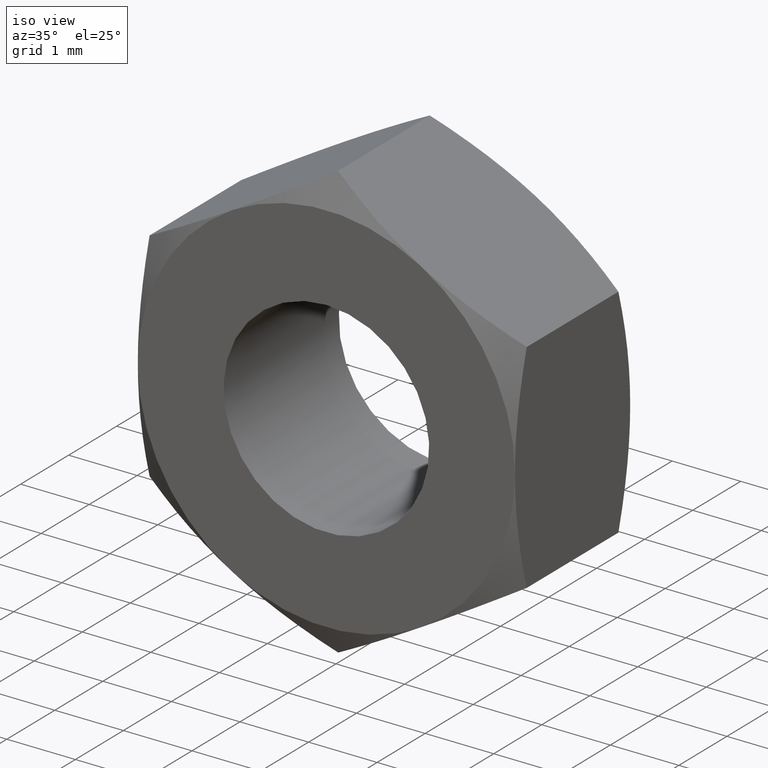
[diagram: clean part render]
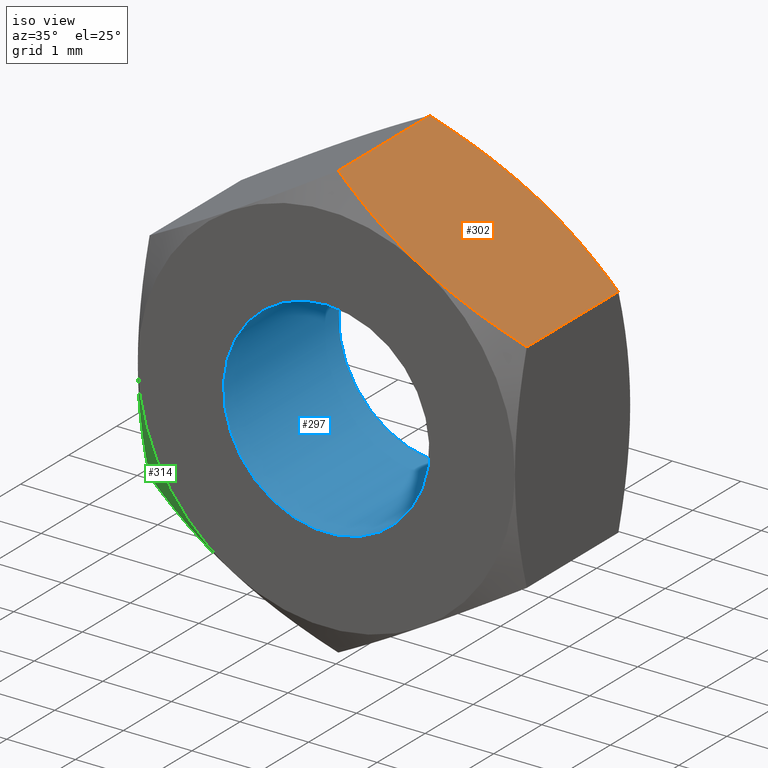
[diagram: same view with three faces highlighted in distinct colors, each labeled with its STEP entity id]
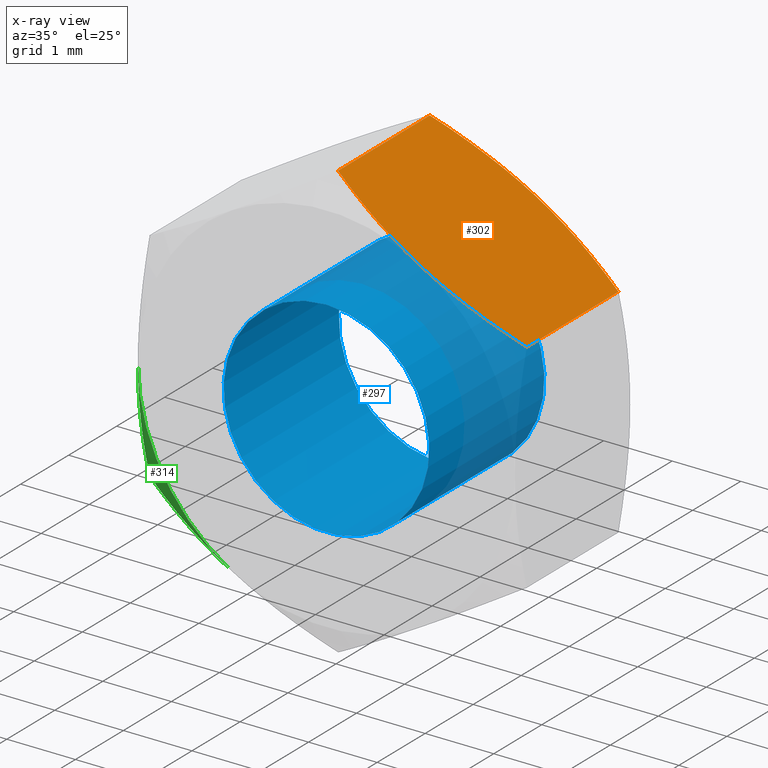
[diagram: x-ray of the same camera — body ghosted, the three highlighted faces saturated]
A machine part, iso view with three faces highlighted in distinct colors.
The next image is the same camera in x-ray (body ghosted, the three faces saturated) — at least one of them is partly hidden behind the body in this view.
Their STEP definitions:

[orange] entity #302 — the highlighted planar face has unit normal (-0.5, 0, -0.866).
#21=PLANE('',#346);
#29=LINE('',#524,#36);
#30=LINE('',#534,#37);
#36=VECTOR('',#403,1000.);
#37=VECTOR('',#406,1000.);
#47=FACE_OUTER_BOUND('',#69,.T.);
#69=EDGE_LOOP('',(#228,#229,#230,#231,#232,#233));
#84=(
BOUNDED_CURVE()
B_SPLINE_CURVE(2,(#450,#451,#452),.UNSPECIFIED.,.F.,.F.)
B_SPLINE_CURVE_WITH_KNOTS((3,3),(-1.21715266222543,-0.886731921730232),
 .UNSPECIFIED.)
CURVE()
GEOMETRIC_REPRESENTATION_ITEM()
RATIONAL_B_SPLINE_CURVE((1.92205114401652,2.07072231740623,2.07072231740623))
REPRESENTATION_ITEM('')
);
#87=(
BOUNDED_CURVE()
B_SPLINE_CURVE(2,(#464,#465,#466),.UNSPECIFIED.,.F.,.F.)
B_SPLINE_CURVE_WITH_KNOTS((3,3),(-1.21715266222543,-0.886731921730233),
 .UNSPECIFIED.)
CURVE()
GEOMETRIC_REPRESENTATION_ITEM()
RATIONAL_B_SPLINE_CURVE((1.92205114401652,2.07072231740623,2.07072231740623))
REPRESENTATION_ITEM('')
);
#98=(
BOUNDED_CURVE()
B_SPLINE_CURVE(2,(#530,#531,#532),.UNSPECIFIED.,.F.,.F.)
B_SPLINE_CURVE_WITH_KNOTS((3,3),(-0.886731921730232,-0.556311181235031),
 .UNSPECIFIED.)
CURVE()
GEOMETRIC_REPRESENTATION_ITEM()
RATIONAL_B_SPLINE_CURVE((2.07072231740623,2.07072231740623,1.92205114401652))
REPRESENTATION_ITEM('')
);
#99=(
BOUNDED_CURVE()
B_SPLINE_CURVE(2,(#535,#536,#537),.UNSPECIFIED.,.F.,.F.)
B_SPLINE_CURVE_WITH_KNOTS((3,3),(0.886731921730232,1.21715266222543),
 .UNSPECIFIED.)
CURVE()
GEOMETRIC_REPRESENTATION_ITEM()
RATIONAL_B_SPLINE_CURVE((2.07072231740623,2.07072231740623,1.92205114401652))
REPRESENTATION_ITEM('')
);
#122=VERTEX_POINT('',#446);
#124=VERTEX_POINT('',#449);
#126=VERTEX_POINT('',#458);
#127=VERTEX_POINT('',#460);
#142=VERTEX_POINT('',#529);
#143=VERTEX_POINT('',#533);
#149=EDGE_CURVE('',#124,#122,#84,.T.);
#153=EDGE_CURVE('',#127,#126,#87,.T.);
#174=EDGE_CURVE('',#127,#124,#29,.T.);
#176=EDGE_CURVE('',#122,#142,#98,.T.);
#177=EDGE_CURVE('',#143,#142,#30,.T.);
#178=EDGE_CURVE('',#126,#143,#99,.T.);
#228=ORIENTED_EDGE('',*,*,#174,.T.);
#229=ORIENTED_EDGE('',*,*,#149,.T.);
#230=ORIENTED_EDGE('',*,*,#176,.T.);
#231=ORIENTED_EDGE('',*,*,#177,.F.);
#232=ORIENTED_EDGE('',*,*,#178,.F.);
#233=ORIENTED_EDGE('',*,*,#153,.F.);
#302=ADVANCED_FACE('',(#47),#21,.F.);
#346=AXIS2_PLACEMENT_3D('',#528,#404,#405);
#403=DIRECTION('',(0.,-1.,0.));
#404=DIRECTION('center_axis',(-0.5,0.,-0.866025403784439));
#405=DIRECTION('ref_axis',(-0.866025403784439,0.,0.5));
#406=DIRECTION('',(0.,-1.,0.));
#446=CARTESIAN_POINT('',(1.375,-1.2,2.38156986040721));
#449=CARTESIAN_POINT('',(-3.62328882571669E-16,-0.954379906938145,3.17542648054293));
#450=CARTESIAN_POINT('Ctrl Pts',(-1.8841981979204E-11,-0.954379906931863,
3.17542648055381));
#451=CARTESIAN_POINT('Ctrl Pts',(0.736860279178012,-1.2,2.75000000000436));
#452=CARTESIAN_POINT('Ctrl Pts',(1.375,-1.20000000000001,2.3815698604072));
#458=CARTESIAN_POINT('',(1.375,1.2,2.3815698604072));
#460=CARTESIAN_POINT('',(-3.62328882571669E-16,0.954379906938145,3.17542648054293));
#464=CARTESIAN_POINT('Ctrl Pts',(-1.8841981979204E-11,0.954379906931863,
3.17542648055381));
#465=CARTESIAN_POINT('Ctrl Pts',(0.736860279178011,1.2,2.75000000000437));
#466=CARTESIAN_POINT('Ctrl Pts',(1.37499999999999,1.20000000000001,2.3815698604072));
#524=CARTESIAN_POINT('',(-3.70746890314654E-16,1.2,3.17542648054293));
#528=CARTESIAN_POINT('Origin',(-3.70746890314654E-16,1.2,3.17542648054293));
#529=CARTESIAN_POINT('',(2.75,-0.954379906938143,1.58771324027146));
#530=CARTESIAN_POINT('Ctrl Pts',(1.375,-1.20000000000001,2.3815698604072));
#531=CARTESIAN_POINT('Ctrl Pts',(2.01313972082198,-1.20000000000001,2.01313972081003));
#532=CARTESIAN_POINT('Ctrl Pts',(2.75000000001884,-0.954379906931863,1.58771324026058));
#533=CARTESIAN_POINT('',(2.75,0.954379906938143,1.58771324027146));
#534=CARTESIAN_POINT('',(2.75,1.2,1.58771324027146));
#535=CARTESIAN_POINT('Ctrl Pts',(1.375,1.20000000000001,2.3815698604072));
#536=CARTESIAN_POINT('Ctrl Pts',(2.01313972082199,1.2,2.01313972081003));
#537=CARTESIAN_POINT('Ctrl Pts',(2.75000000001884,0.954379906931861,1.58771324026058));

[blue] entity #297 — the highlighted cylindrical surface (bore or boss wall) has radius 1.5 mm, axis along (0, -1, 0).
#25=LINE('',#471,#32);
#32=VECTOR('',#379,1.5);
#39=CYLINDRICAL_SURFACE('',#334,1.5);
#42=FACE_OUTER_BOUND('',#63,.T.);
#63=EDGE_LOOP('',(#199,#200,#201,#202));
#110=CIRCLE('',#335,1.5);
#111=CIRCLE('',#336,1.5);
#128=VERTEX_POINT('',#468);
#129=VERTEX_POINT('',#470);
#154=EDGE_CURVE('',#128,#128,#110,.T.);
#155=EDGE_CURVE('',#128,#129,#25,.T.);
#156=EDGE_CURVE('',#129,#129,#111,.T.);
#199=ORIENTED_EDGE('',*,*,#154,.T.);
#200=ORIENTED_EDGE('',*,*,#155,.T.);
#201=ORIENTED_EDGE('',*,*,#156,.F.);
#202=ORIENTED_EDGE('',*,*,#155,.F.);
#297=ADVANCED_FACE('',(#42),#39,.F.);
#334=AXIS2_PLACEMENT_3D('',#467,#375,#376);
#335=AXIS2_PLACEMENT_3D('',#469,#377,#378);
#336=AXIS2_PLACEMENT_3D('',#472,#380,#381);
#375=DIRECTION('center_axis',(0.,-1.,0.));
#376=DIRECTION('ref_axis',(0.,0.,-1.));
#377=DIRECTION('center_axis',(0.,1.,0.));
#378=DIRECTION('ref_axis',(0.,0.,1.));
#379=DIRECTION('',(0.,-1.,0.));
#380=DIRECTION('center_axis',(0.,1.,0.));
#381=DIRECTION('ref_axis',(0.,0.,1.));
#467=CARTESIAN_POINT('Origin',(0.,1.2,0.));
#468=CARTESIAN_POINT('',(-1.83697019872103E-16,1.2,1.5));
#469=CARTESIAN_POINT('Origin',(0.,1.2,0.));
#470=CARTESIAN_POINT('',(-1.83697019872103E-16,-1.2,1.5));
#471=CARTESIAN_POINT('',(-1.83697019872103E-16,1.2,1.5));
#472=CARTESIAN_POINT('Origin',(0.,-1.2,0.));

[green] entity #314 — the highlighted conical surface has half-angle 60 deg.
#59=FACE_OUTER_BOUND('',#82,.T.);
#82=EDGE_LOOP('',(#277,#278,#279));
#89=(
BOUNDED_CURVE()
B_SPLINE_CURVE(2,(#492,#493,#494),.UNSPECIFIED.,.F.,.F.)
B_SPLINE_CURVE_WITH_KNOTS((3,3),(-0.886731921730227,-0.556311181235044),
 .UNSPECIFIED.)
CURVE()
GEOMETRIC_REPRESENTATION_ITEM()
RATIONAL_B_SPLINE_CURVE((2.07072231740621,2.07072231740621,1.92205114401652))
REPRESENTATION_ITEM('')
);
#92=(
BOUNDED_CURVE()
B_SPLINE_CURVE(2,(#505,#506,#507),.UNSPECIFIED.,.F.,.F.)
B_SPLINE_CURVE_WITH_KNOTS((3,3),(-1.21715266222544,-0.88673192173023),
 .UNSPECIFIED.)
CURVE()
GEOMETRIC_REPRESENTATION_ITEM()
RATIONAL_B_SPLINE_CURVE((1.9220511440165,2.07072231740622,2.07072231740622))
REPRESENTATION_ITEM('')
);
#118=CIRCLE('',#351,2.75);
#136=VERTEX_POINT('',#487);
#137=VERTEX_POINT('',#491);
#139=VERTEX_POINT('',#504);
#164=EDGE_CURVE('',#136,#137,#89,.T.);
#168=EDGE_CURVE('',#137,#139,#92,.T.);
#189=EDGE_CURVE('',#139,#136,#118,.T.);
#277=ORIENTED_EDGE('',*,*,#189,.F.);
#278=ORIENTED_EDGE('',*,*,#168,.F.);
#279=ORIENTED_EDGE('',*,*,#164,.F.);
#293=CONICAL_SURFACE('',#363,2.75,1.0471975511966);
#314=ADVANCED_FACE('',(#59),#293,.T.);
#351=AXIS2_PLACEMENT_3D('',#571,#416,#417);
#363=AXIS2_PLACEMENT_3D('',#583,#440,#441);
#416=DIRECTION('center_axis',(0.,-1.,0.));
#417=DIRECTION('ref_axis',(0.,0.,1.));
#440=DIRECTION('center_axis',(0.,1.,0.));
#441=DIRECTION('ref_axis',(0.,0.,1.));
#487=CARTESIAN_POINT('',(-1.375,-1.2,-2.38156986040721));
#491=CARTESIAN_POINT('',(-2.75,-0.95437990693821,-1.58771324027159));
#492=CARTESIAN_POINT('Ctrl Pts',(-1.37500000000001,-1.2,-2.38156986040721));
#493=CARTESIAN_POINT('Ctrl Pts',(-2.01313972082197,-1.19999999999999,-2.01313972081006));
#494=CARTESIAN_POINT('Ctrl Pts',(-2.75000000001878,-0.954379906931875,-1.58771324026064));
#504=CARTESIAN_POINT('',(-2.75,-1.2,0.));
#505=CARTESIAN_POINT('Ctrl Pts',(-2.75,-0.954379906931833,-1.58771324029331));
#506=CARTESIAN_POINT('Ctrl Pts',(-2.75,-1.2,-0.736860279194368));
#507=CARTESIAN_POINT('Ctrl Pts',(-2.75,-1.2,-8.57844059760417E-16));
#571=CARTESIAN_POINT('Origin',(0.,-1.2,0.));
#583=CARTESIAN_POINT('Origin',(0.,-1.2,0.));